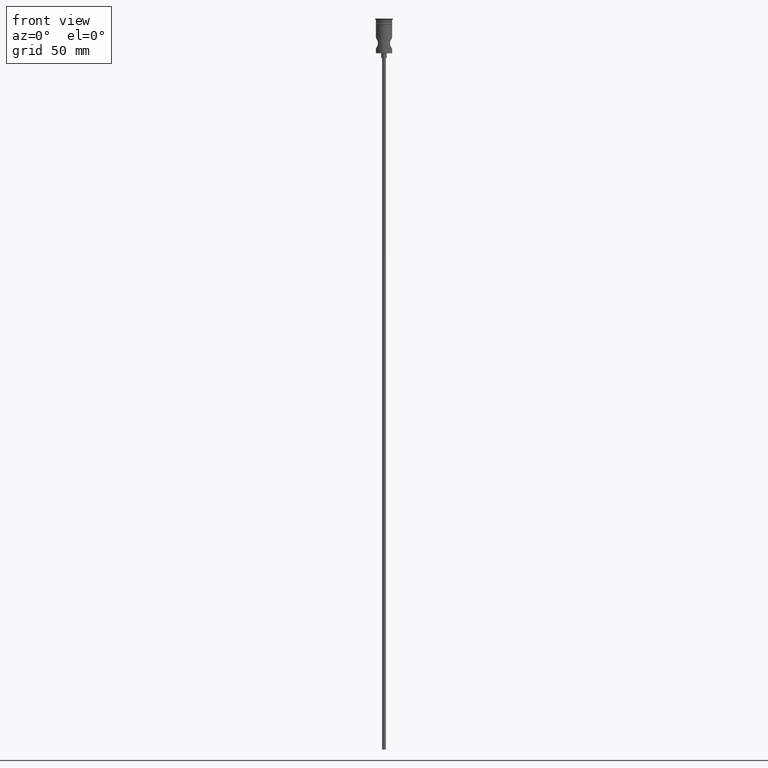
[diagram: clean part render]
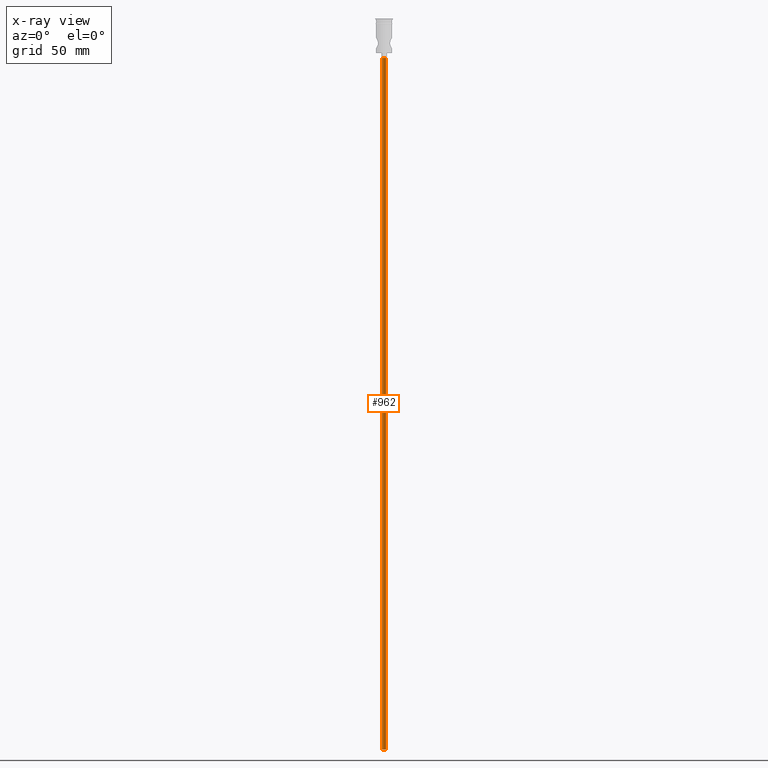
[diagram: x-ray — body ghosted, one internal face saturated and labeled with its STEP entity id]
A machine part, front view, then the same camera in x-ray: the body is ghosted and one INTERNAL B-rep face — a face not visible from any outside direction — is saturated and labeled: STEP entity #962.
In plain terms, the highlighted cylindrical surface (edge-blend (fillet) strip) has radius 1.25 mm, axis along (-0, -0, 1).
Its self-contained STEP definition (entity closure, byte-faithful):
#5 = CARTESIAN_POINT ( 'NONE',  ( 0.000000000000000000, 0.000000000000000000, -472.5000000000000568 ) ) ;
#142 = DIRECTION ( 'NONE',  ( 0.000000000000000000, 0.000000000000000000, -1.000000000000000000 ) ) ;
#157 = AXIS2_PLACEMENT_3D ( 'NONE', #158, #268, #1169 ) ;
#158 = CARTESIAN_POINT ( 'NONE',  ( 0.000000000000000000, 0.000000000000000000, -472.5000000000000568 ) ) ;
#189 = VERTEX_POINT ( 'NONE', #291 ) ;
#200 = CARTESIAN_POINT ( 'NONE',  ( 1.250000000000000000, 0.000000000000000000, -472.5000000000000568 ) ) ;
#268 = DIRECTION ( 'NONE',  ( 0.000000000000000000, 0.000000000000000000, -1.000000000000000000 ) ) ;
#279 = CIRCLE ( 'NONE', #157, 1.250000000000000000 ) ;
#291 = CARTESIAN_POINT ( 'NONE',  ( -1.250000000000000000, 1.530808498934191571E-16, -472.5000000000000568 ) ) ;
#315 = VERTEX_POINT ( 'NONE', #200 ) ;
#417 = ORIENTED_EDGE ( 'NONE', *, *, #1064, .F. ) ;
#459 = EDGE_CURVE ( 'NONE', #687, #1307, #1200, .T. ) ;
#480 = CARTESIAN_POINT ( 'NONE',  ( 1.250000000000000000, 0.000000000000000000, -472.5000000000000568 ) ) ;
#539 = ORIENTED_EDGE ( 'NONE', *, *, #459, .T. ) ;
#611 = CARTESIAN_POINT ( 'NONE',  ( -1.250000000000000000, 1.530808498934191571E-16, -25.50000000000000000 ) ) ;
#657 = CARTESIAN_POINT ( 'NONE',  ( 1.250000000000000000, 0.000000000000000000, -25.50000000000000000 ) ) ;
#666 = ORIENTED_EDGE ( 'NONE', *, *, #994, .F. ) ;
#687 = VERTEX_POINT ( 'NONE', #611 ) ;
#745 = LINE ( 'NONE', #1181, #1322 ) ;
#766 = DIRECTION ( 'NONE',  ( 1.000000000000000000, 0.000000000000000000, 0.000000000000000000 ) ) ;
#811 = EDGE_LOOP ( 'NONE', ( #666, #1183, #539, #417 ) ) ;
#955 = CARTESIAN_POINT ( 'NONE',  ( 0.000000000000000000, 0.000000000000000000, -25.50000000000000000 ) ) ;
#962 = ADVANCED_FACE ( 'NONE', ( #1004 ), #1204, .T. ) ;
#978 = VECTOR ( 'NONE', #1221, 1000.000000000000000 ) ;
#994 = EDGE_CURVE ( 'NONE', #189, #315, #279, .T. ) ;
#1004 = FACE_OUTER_BOUND ( 'NONE', #811, .T. ) ;
#1029 = LINE ( 'NONE', #480, #978 ) ;
#1064 = EDGE_CURVE ( 'NONE', #315, #1307, #1029, .T. ) ;
#1155 = AXIS2_PLACEMENT_3D ( 'NONE', #5, #1333, #766 ) ;
#1169 = DIRECTION ( 'NONE',  ( -1.000000000000000000, 0.000000000000000000, 0.000000000000000000 ) ) ;
#1181 = CARTESIAN_POINT ( 'NONE',  ( -1.250000000000000000, 1.530808498934191571E-16, -472.5000000000000568 ) ) ;
#1183 = ORIENTED_EDGE ( 'NONE', *, *, #1364, .T. ) ;
#1200 = CIRCLE ( 'NONE', #1386, 1.250000000000000000 ) ;
#1204 = CYLINDRICAL_SURFACE ( 'NONE', #1155, 1.250000000000000000 ) ;
#1221 = DIRECTION ( 'NONE',  ( -0.000000000000000000, -0.000000000000000000, 1.000000000000000000 ) ) ;
#1307 = VERTEX_POINT ( 'NONE', #657 ) ;
#1322 = VECTOR ( 'NONE', #1405, 1000.000000000000000 ) ;
#1333 = DIRECTION ( 'NONE',  ( -0.000000000000000000, -0.000000000000000000, 1.000000000000000000 ) ) ;
#1364 = EDGE_CURVE ( 'NONE', #189, #687, #745, .T. ) ;
#1386 = AXIS2_PLACEMENT_3D ( 'NONE', #955, #142, #1397 ) ;
#1397 = DIRECTION ( 'NONE',  ( -1.000000000000000000, 0.000000000000000000, 0.000000000000000000 ) ) ;
#1405 = DIRECTION ( 'NONE',  ( -0.000000000000000000, -0.000000000000000000, 1.000000000000000000 ) ) ;